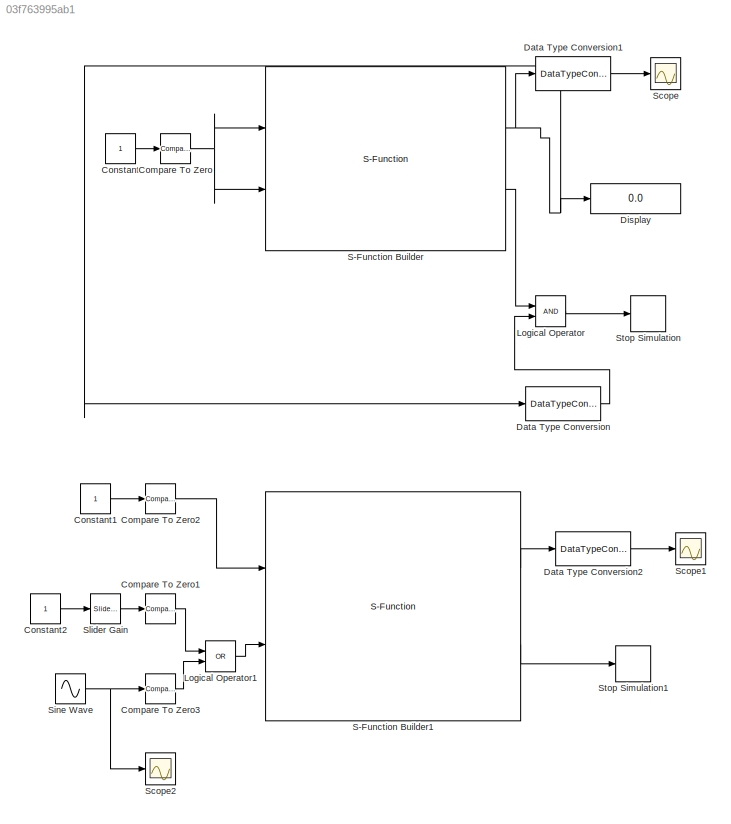
MODEL slx_03f763995ab1
KIND model
BLOCK [Reference] Compare To Zero  REF=simulink/Logic and Bit
Operations/Compare
To Zero
  OutDataTypeStr = boolean
  Ports = [1, 1]
  SourceBlock = simulink/Logic and Bit\nOperations/Compare\nTo Zero
  SourceType = Compare To Zero
  ZeroCross = on
  relop = >
BLOCK [Reference] Compare To Zero1  REF=simulink/Logic and Bit
Operations/Compare
To Zero
  OutDataTypeStr = boolean
  Ports = [1, 1]
  SourceBlock = simulink/Logic and Bit\nOperations/Compare\nTo Zero
  SourceType = Compare To Zero
  ZeroCross = on
  relop = >
BLOCK [Reference] Compare To Zero2  REF=simulink/Logic and Bit
Operations/Compare
To Zero
  OutDataTypeStr = boolean
  Ports = [1, 1]
  SourceBlock = simulink/Logic and Bit\nOperations/Compare\nTo Zero
  SourceType = Compare To Zero
  ZeroCross = on
  relop = >
BLOCK [Reference] Compare To Zero3  REF=simulink/Logic and Bit
Operations/Compare
To Zero
  OutDataTypeStr = boolean
  Ports = [1, 1]
  SourceBlock = simulink/Logic and Bit\nOperations/Compare\nTo Zero
  SourceType = Compare To Zero
  ZeroCross = on
  relop = >
BLOCK [Constant] Constant
BLOCK [Constant] Constant1
BLOCK [Constant] Constant2
BLOCK [DataTypeConversion] Data Type Conversion
  OutDataTypeStr = boolean
  OutMax = [1]
  OutMin = [0]
  RndMeth = Round
  SaturateOnIntegerOverflow = off
BLOCK [DataTypeConversion] Data Type Conversion1
  OutDataTypeStr = double
  OutMax = [1]
  OutMin = [0]
  RndMeth = Round
  SaturateOnIntegerOverflow = off
BLOCK [DataTypeConversion] Data Type Conversion2
  OutDataTypeStr = double
  OutMax = [1]
  OutMin = [0]
  RndMeth = Round
  SaturateOnIntegerOverflow = off
BLOCK [Display] Display
  Decimation = 1
  Lockdown = off
  Ports = [1]
BLOCK [Logic] Logical Operator
  AllPortsSameDT = off
  OutDataTypeStr = boolean
  Ports = [2, 1]
BLOCK [Logic] Logical Operator1
  AllPortsSameDT = off
  Operator = OR
  OutDataTypeStr = boolean
  Ports = [2, 1]
BLOCK [S-Function] S-Function Builder
  CopyFcn = set_param(gcbh,'LinkStatus','none')
  EnableBusSupport = off
  FunctionName = BBB_Driver_GPIO_Read
  InitFcn = try, set_param(gcb,'FunctionName','BBB_Driver_GPIO_Read'), end
  OpenFcn = sfunctionwizard(gcbh)
  Parameters = uint16(1),uint16(4)
  Ports = [2, 2]
  PreSaveFcn = try, set_param(gcb,'FunctionName','BBB_Driver_GPIO_Read'), end
  SFunctionModules = BBB_Driver_GPIO_Read_wrapper
BLOCK [S-Function] S-Function Builder1
  CopyFcn = set_param(gcbh,'LinkStatus','none')
  EnableBusSupport = off
  FunctionName = BBB_Driver_GPIO_Write
  InitFcn = try, set_param(gcb,'FunctionName','BBB_Driver_GPIO_Write'), end
  OpenFcn = sfunctionwizard(gcbh)
  Parameters = uint16(3),uint16(6)
  Ports = [2, 2]
  PreSaveFcn = try, set_param(gcb,'FunctionName','BBB_Driver_GPIO_Write'), end
  SFunctionModules = BBB_Driver_GPIO_Write_wrapper
BLOCK [Scope] Scope
  DataFormat = StructureWithTime
  Floating = off
  NumInputPorts = 1
  Ports = [1]
  SampleTime = 0
  ShowLegends = off
BLOCK [Scope] Scope1
  DataFormat = StructureWithTime
  Floating = off
  NumInputPorts = 1
  Ports = [1]
  SampleTime = 0
  SaveName = ScopeData1
  ShowLegends = off
  ZoomMode = yonly
BLOCK [Scope] Scope2
  DataFormat = StructureWithTime
  Floating = off
  NumInputPorts = 1
  Ports = [1]
  SampleTime = 0
  SaveName = ScopeData2
  ShowLegends = off
BLOCK [Sin] Sine Wave
  Frequency = 4
  Ports = [0, 1]
BLOCK [Reference] Slider Gain  REF=simulink/Math
Operations/Slider
Gain
  Ports = [1, 1]
  SourceBlock = simulink/Math\nOperations/Slider\nGain
  SourceType = Slider Gain
  gain = 0
  high = 1
  low = 0
BLOCK [Stop] Stop Simulation
BLOCK [Stop] Stop Simulation1
LINE Compare To Zero1:1 -> Logical Operator1:1
LINE Compare To Zero2:1 -> S-Function Builder1:1
LINE Compare To Zero3:1 -> Logical Operator1:2
NET Compare To Zero:1 -> S-Function Builder:1, S-Function Builder:2
LINE Constant1:1 -> Compare To Zero2:1
LINE Constant2:1 -> Slider Gain:1
LINE Constant:1 -> Compare To Zero:1
LINE Data Type Conversion1:1 -> Scope:1
LINE Data Type Conversion2:1 -> Scope1:1
LINE Data Type Conversion:1 -> Logical Operator:2
LINE Logical Operator1:1 -> S-Function Builder1:2
LINE Logical Operator:1 -> Stop Simulation:1
LINE S-Function Builder1:1 -> Data Type Conversion2:1
LINE S-Function Builder1:2 -> Stop Simulation1:1
NET S-Function Builder:1 -> Data Type Conversion1:1, Data Type Conversion:1, Display:1
LINE S-Function Builder:2 -> Logical Operator:1
NET Sine Wave:1 -> Compare To Zero3:1, Scope2:1
LINE Slider Gain:1 -> Compare To Zero1:1
note: NET lines group one-source signal fan-out (src -> all destinations, sorted); 1:1 wires keep LINE
